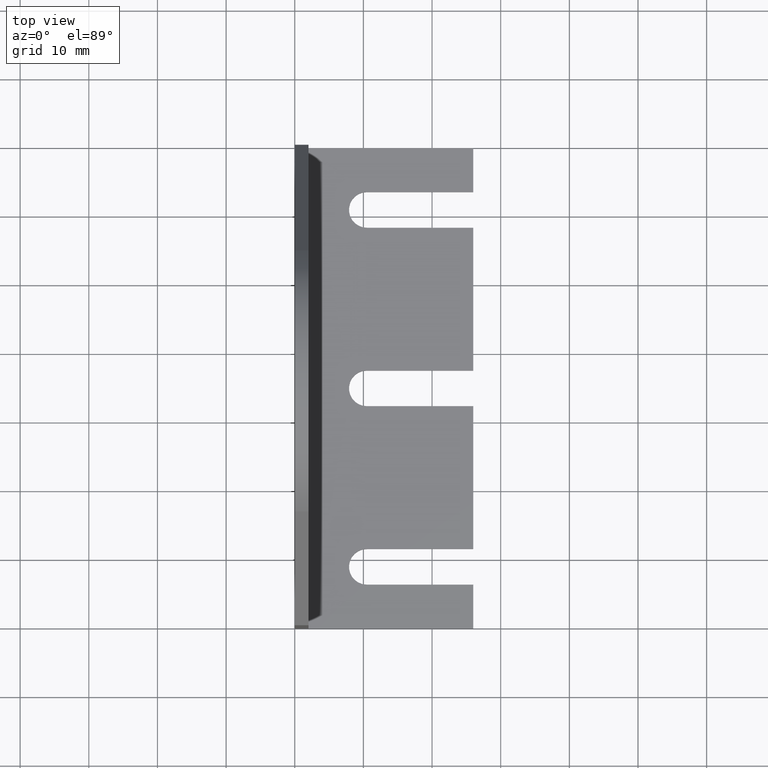
[diagram: clean part render]
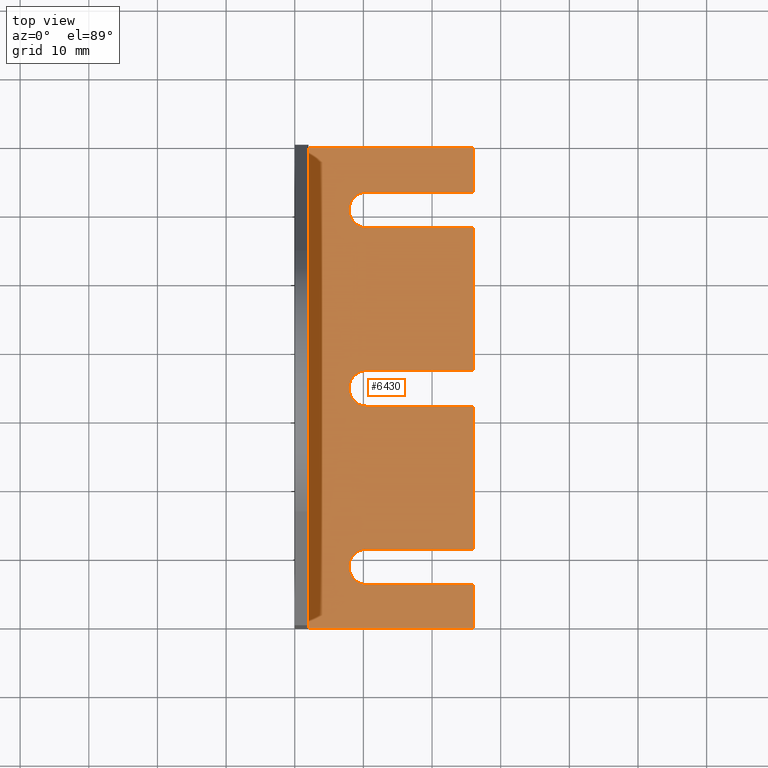
[diagram: same view with one face highlighted and labeled with its STEP entity id]
A machine part, top view. The second image highlights one B-rep face of the part: STEP entity #6430.
In plain terms, the highlighted planar face has unit normal (0, 0, 1).
Its self-contained STEP definition (entity closure, byte-faithful):
#820=CARTESIAN_POINT('',(35.,-53.,2.));
#830=VERTEX_POINT('',#820);
#860=CARTESIAN_POINT('',(0.,-53.,2.));
#870=DIRECTION('',(1.,0.,0.));
#880=VECTOR('',#870,1.);
#890=LINE('',#860,#880);
#900=CARTESIAN_POINT('',(-35.,-53.,2.));
#910=VERTEX_POINT('',#900);
#920=EDGE_CURVE('',#910,#830,#890,.T.);
#3060=CARTESIAN_POINT('',(-35.,-53.,21.));
#3070=DIRECTION('',(0.,0.,-1.));
#3080=VECTOR('',#3070,1.);
#3090=LINE('',#3060,#3080);
#3100=CARTESIAN_POINT('',(-35.,-53.,26.));
#3110=VERTEX_POINT('',#3100);
#3120=EDGE_CURVE('',#3110,#910,#3090,.T.);
#4860=CARTESIAN_POINT('',(30.,-53.,26.));
#4870=DIRECTION('',(-1.,0.,-2.96059473233375E-16));
#4880=VECTOR('',#4870,1.);
#4890=LINE('',#4860,#4880);
#4900=CARTESIAN_POINT('',(-28.6,-53.,26.));
#4910=VERTEX_POINT('',#4900);
#4920=EDGE_CURVE('',#4910,#3110,#4890,.T.);
#5400=CARTESIAN_POINT('',(35.,-53.,1.80088514248714));
#5410=DIRECTION('',(0.,1.,0.));
#5420=DIRECTION('',(0.,0.,1.));
#5430=AXIS2_PLACEMENT_3D('',#5400,#5410,#5420);
#5440=PLANE('',#5430);
#5450=ORIENTED_EDGE('',*,*,#3120,.F.);
#5460=ORIENTED_EDGE('',*,*,#920,.F.);
#5470=CARTESIAN_POINT('',(35.,-53.,4.));
#5480=DIRECTION('',(0.,0.,1.));
#5490=VECTOR('',#5480,1.);
#5500=LINE('',#5470,#5490);
#5510=CARTESIAN_POINT('',(35.,-53.,26.));
#5520=VERTEX_POINT('',#5510);
#5530=EDGE_CURVE('',#830,#5520,#5500,.T.);
#5540=ORIENTED_EDGE('',*,*,#5530,.F.);
#5550=CARTESIAN_POINT('',(28.6,-53.,26.));
#5560=VERTEX_POINT('',#5550);
#5570=EDGE_CURVE('',#5520,#5560,#4890,.T.);
#5580=ORIENTED_EDGE('',*,*,#5570,.F.);
#5590=CARTESIAN_POINT('',(28.6,-53.,0.));
#5600=DIRECTION('',(0.,0.,1.));
#5610=VECTOR('',#5600,1.);
#5620=LINE('',#5590,#5610);
#5630=CARTESIAN_POINT('',(28.6,-53.,10.5));
#5640=VERTEX_POINT('',#5630);
#5650=EDGE_CURVE('',#5640,#5560,#5620,.T.);
#5660=ORIENTED_EDGE('',*,*,#5650,.T.);
#5670=CARTESIAN_POINT('',(26.,-53.,10.5));
#5680=DIRECTION('',(0.,-1.,0.));
#5690=DIRECTION('',(0.,0.,-1.));
#5700=AXIS2_PLACEMENT_3D('',#5670,#5680,#5690);
#5710=CIRCLE('',#5700,2.59999999999999);
#5720=CARTESIAN_POINT('',(23.4,-53.,10.5));
#5730=VERTEX_POINT('',#5720);
#5740=EDGE_CURVE('',#5730,#5640,#5710,.T.);
#5750=ORIENTED_EDGE('',*,*,#5740,.T.);
#5760=CARTESIAN_POINT('',(23.4,-53.,0.));
#5770=DIRECTION('',(0.,0.,-1.));
#5780=VECTOR('',#5770,1.);
#5790=LINE('',#5760,#5780);
#5800=CARTESIAN_POINT('',(23.4,-53.,26.));
#5810=VERTEX_POINT('',#5800);
#5820=EDGE_CURVE('',#5810,#5730,#5790,.T.);
#5830=ORIENTED_EDGE('',*,*,#5820,.T.);
#5840=CARTESIAN_POINT('',(2.60000000000001,-53.,26.));
#5850=VERTEX_POINT('',#5840);
#5860=EDGE_CURVE('',#5810,#5850,#4890,.T.);
#5870=ORIENTED_EDGE('',*,*,#5860,.F.);
#5880=CARTESIAN_POINT('',(2.6,-53.,0.));
#5890=DIRECTION('',(0.,0.,1.));
#5900=VECTOR('',#5890,1.);
#5910=LINE('',#5880,#5900);
#5920=CARTESIAN_POINT('',(2.6,-53.,10.5));
#5930=VERTEX_POINT('',#5920);
#5940=EDGE_CURVE('',#5930,#5850,#5910,.T.);
#5950=ORIENTED_EDGE('',*,*,#5940,.T.);
#5960=CARTESIAN_POINT('',(0.,-53.,10.5));
#5970=DIRECTION('',(0.,-1.,0.));
#5980=DIRECTION('',(-1.,0.,2.04964250700029E-14));
#5990=AXIS2_PLACEMENT_3D('',#5960,#5970,#5980);
#6000=CIRCLE('',#5990,2.6);
#6010=CARTESIAN_POINT('',(-2.60000000000001,-53.,10.5));
#6020=VERTEX_POINT('',#6010);
#6030=EDGE_CURVE('',#6020,#5930,#6000,.T.);
#6040=ORIENTED_EDGE('',*,*,#6030,.T.);
#6050=CARTESIAN_POINT('',(-2.60000000000001,-53.,0.));
#6060=DIRECTION('',(0.,0.,-1.));
#6070=VECTOR('',#6060,1.);
#6080=LINE('',#6050,#6070);
#6090=CARTESIAN_POINT('',(-2.60000000000001,-53.,26.));
#6100=VERTEX_POINT('',#6090);
#6110=EDGE_CURVE('',#6100,#6020,#6080,.T.);
#6120=ORIENTED_EDGE('',*,*,#6110,.T.);
#6130=CARTESIAN_POINT('',(-23.4,-53.,26.));
#6140=VERTEX_POINT('',#6130);
#6150=EDGE_CURVE('',#6100,#6140,#4890,.T.);
#6160=ORIENTED_EDGE('',*,*,#6150,.F.);
#6170=CARTESIAN_POINT('',(-23.4,-53.,0.));
#6180=DIRECTION('',(0.,0.,1.));
#6190=VECTOR('',#6180,1.);
#6200=LINE('',#6170,#6190);
#6210=CARTESIAN_POINT('',(-23.4,-53.,10.5));
#6220=VERTEX_POINT('',#6210);
#6230=EDGE_CURVE('',#6220,#6140,#6200,.T.);
#6240=ORIENTED_EDGE('',*,*,#6230,.T.);
#6250=CARTESIAN_POINT('',(-26.,-53.,10.5));
#6260=DIRECTION('',(0.,-1.,0.));
#6270=DIRECTION('',(-1.,0.,2.0496425070003E-14));
#6280=AXIS2_PLACEMENT_3D('',#6250,#6260,#6270);
#6290=CIRCLE('',#6280,2.59999999999999);
#6300=CARTESIAN_POINT('',(-28.6,-53.,10.5));
#6310=VERTEX_POINT('',#6300);
#6320=EDGE_CURVE('',#6310,#6220,#6290,.T.);
#6330=ORIENTED_EDGE('',*,*,#6320,.T.);
#6340=CARTESIAN_POINT('',(-28.6,-53.,0.));
#6350=DIRECTION('',(0.,0.,-1.));
#6360=VECTOR('',#6350,1.);
#6370=LINE('',#6340,#6360);
#6380=EDGE_CURVE('',#4910,#6310,#6370,.T.);
#6390=ORIENTED_EDGE('',*,*,#6380,.T.);
#6400=ORIENTED_EDGE('',*,*,#4920,.F.);
#6410=EDGE_LOOP('',(#6400,#6390,#6330,#6240,#6160,#6120,#6040,#5950,
#5870,#5830,#5750,#5660,#5580,#5540,#5460,#5450));
#6420=FACE_OUTER_BOUND('',#6410,.T.);
#6430=ADVANCED_FACE('',(#6420),#5440,.T.);